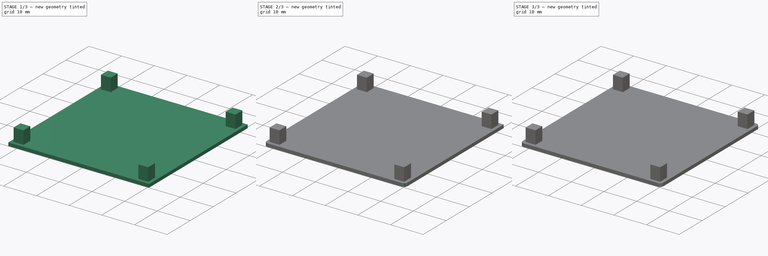
[diagram: build sequence overview — one tinted view per stage of 3, left to right]
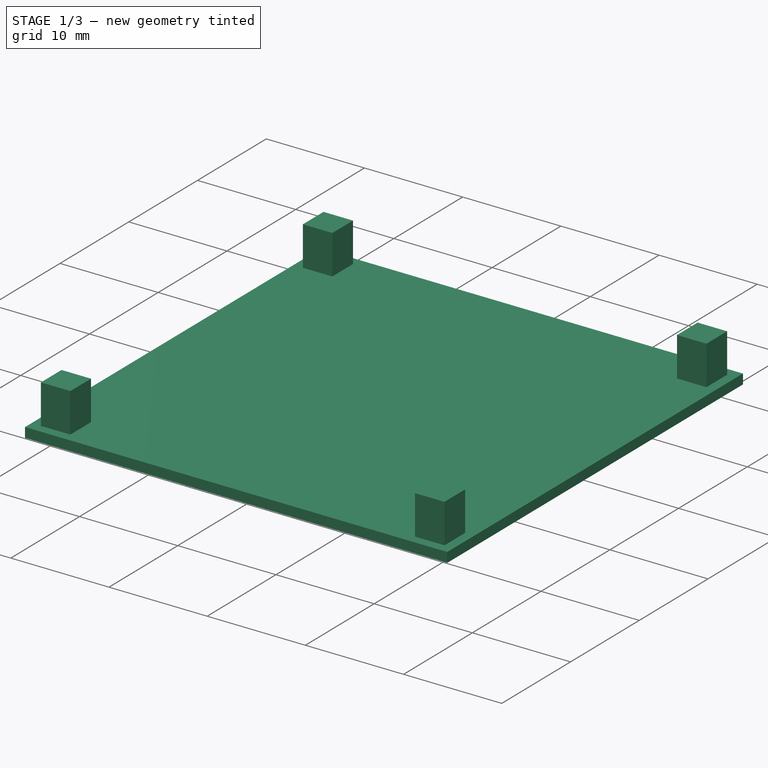
[diagram: stage 1 of 3 — iso view after this stage's code; geometry added in this stage tinted green]
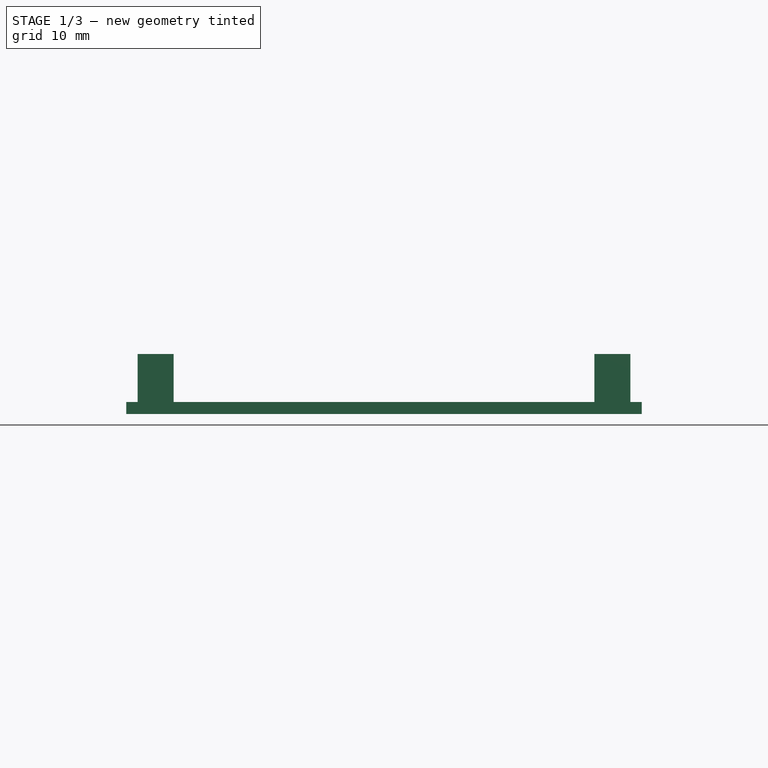
[diagram: stage 1 of 3 — front view after this stage's code; geometry added in this stage tinted green]
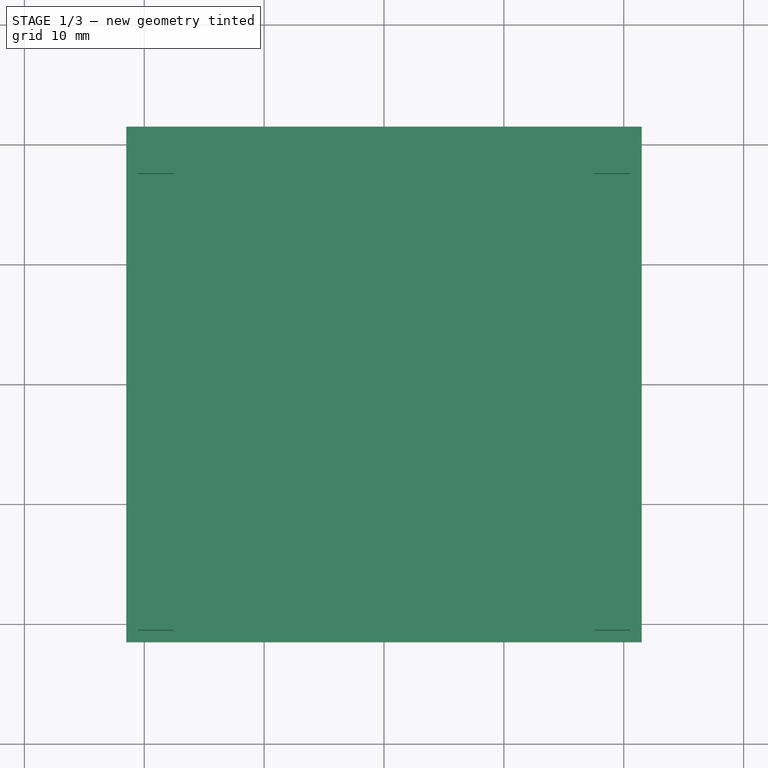
[diagram: stage 1 of 3 — top view after this stage's code; geometry added in this stage tinted green]
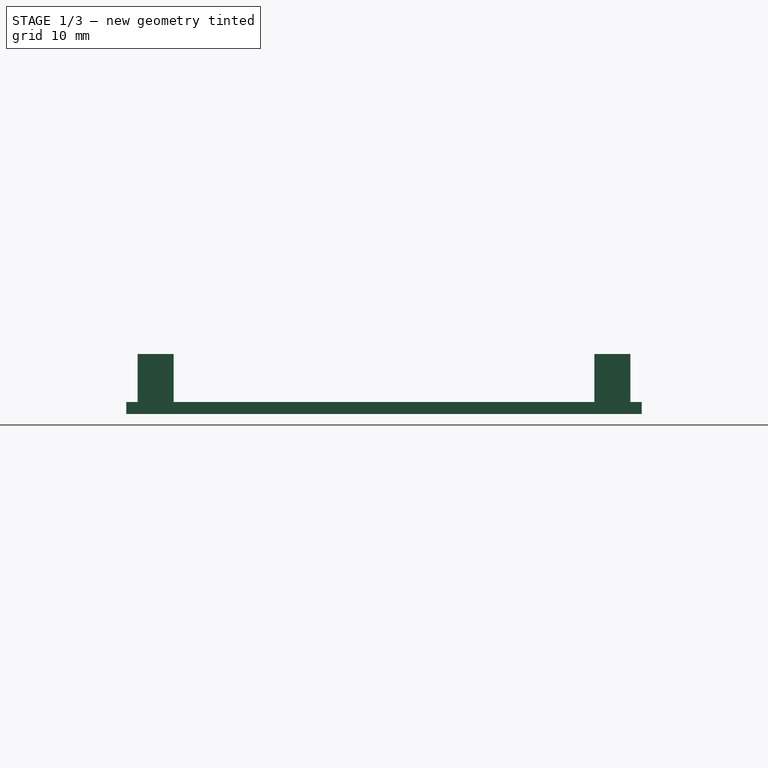
[diagram: stage 1 of 3 — right view after this stage's code; geometry added in this stage tinted green]
FCSTD DOCUMENT  (FreeCAD 0.18R16110 (Git))
Label: NanoPi Neo Top
License: All rights reserved
LicenseURL: http://en.wikipedia.org/wiki/All_rights_reserved
objects: PartDesign::Fillet×4, Sketcher::SketchObject×2, PartDesign::Pad×2, PartDesign::Body×1
note: 11 computed .brp shape members not serialized (recipe doc carries the construction recipe); baked Part::Feature solids carry a one-line shape summary decoded from their .brp

FEATURE [Sketcher::SketchObject] Sketch
  MapMode = 5
  Support = -> [XY_Plane]
  sketch-geometry (4):
    g0: LineSegment StartX=-21.5 StartY=21.5 StartZ=0 EndX=21.5 EndY=21.5 EndZ=0
    g1: LineSegment StartX=21.5 StartY=21.5 StartZ=0 EndX=21.5 EndY=-21.5 EndZ=0
    g2: LineSegment StartX=21.5 StartY=-21.5 StartZ=0 EndX=-21.5 EndY=-21.5 EndZ=0
    g3: LineSegment StartX=-21.5 StartY=-21.5 StartZ=0 EndX=-21.5 EndY=21.5 EndZ=0
  constraints (12):
    c: Coincident(g0,g1)
    c: Coincident(g1,g2)
    c: Coincident(g2,g3)
    c: Coincident(g3,g0)
    c: Horizontal(g0)
    c: Horizontal(g2)
    c: Vertical(g1)
    c: Vertical(g3)
    c: Distance(g0) = 43
    c: Distance(g3) = 43
    c: DistanceX(g2,g-1) = 21.5
    c: DistanceY(g-1,g0) = 21.5
FEATURE [PartDesign::Pad] Pad
  Length = 1
  Length2 = 100
  Profile = -> Sketch
  Type = 0
FEATURE [Sketcher::SketchObject] Sketch001
  ExternalGeometry = -> [Pad]
  MapMode = 5
  Placement = pos=(0,0,1) rot=(0,0,1;0rad)
  Support = -> [Pad]
  sketch-geometry (16):
    g0: LineSegment StartX=-20.55 StartY=20.55 StartZ=0 EndX=-17.55 EndY=20.55 EndZ=0
    g1: LineSegment StartX=-17.55 StartY=20.55 StartZ=0 EndX=-17.55 EndY=17.55 EndZ=0
    g2: LineSegment StartX=-17.55 StartY=17.55 StartZ=0 EndX=-20.55 EndY=17.55 EndZ=0
    g3: LineSegment StartX=-20.55 StartY=17.55 StartZ=0 EndX=-20.55 EndY=20.55 EndZ=0
    g4: LineSegment StartX=17.55 StartY=20.55 StartZ=0 EndX=20.55 EndY=20.55 EndZ=0
    g5: LineSegment StartX=20.55 StartY=20.55 StartZ=0 EndX=20.55 EndY=17.55 EndZ=0
    g6: LineSegment StartX=20.55 StartY=17.55 StartZ=0 EndX=17.55 EndY=17.55 EndZ=0
    g7: LineSegment StartX=17.55 StartY=17.55 StartZ=0 EndX=17.55 EndY=20.55 EndZ=0
    g8: LineSegment StartX=-20.55 StartY=-17.55 StartZ=0 EndX=-17.55 EndY=-17.55 EndZ=0
    g9: LineSegment StartX=-17.55 StartY=-17.55 StartZ=0 EndX=-17.55 EndY=-20.55 EndZ=0
    g10: LineSegment StartX=-17.55 StartY=-20.55 StartZ=0 EndX=-20.55 EndY=-20.55 EndZ=0
    g11: LineSegment StartX=-20.55 StartY=-20.55 StartZ=0 EndX=-20.55 EndY=-17.55 EndZ=0
    g12: LineSegment StartX=17.55 StartY=-17.55 StartZ=0 EndX=20.55 EndY=-17.55 EndZ=0
    g13: LineSegment StartX=20.55 StartY=-17.55 StartZ=0 EndX=20.55 EndY=-20.55 EndZ=0
    g14: LineSegment StartX=20.55 StartY=-20.55 StartZ=0 EndX=17.55 EndY=-20.55 EndZ=0
    g15: LineSegment StartX=17.55 StartY=-20.55 StartZ=0 EndX=17.55 EndY=-17.55 EndZ=0
  constraints (48):
    c: Coincident(g0,g1)
    c: Coincident(g1,g2)
    c: Coincident(g2,g3)
    c: Coincident(g3,g0)
    c: Horizontal(g0)
    c: Horizontal(g2)
    c: Vertical(g1)
    c: Vertical(g3)
    c: Distance(g0) = 3
    c: Distance(g3) = 3
    c: DistanceX(g-4,g0) = 0.95
    c: DistanceY(g0,g-4) = 0.95
    c: Coincident(g4,g5)
    c: Coincident(g5,g6)
    c: Coincident(g6,g7)
    c: Coincident(g7,g4)
    c: Horizontal(g4)
    c: Horizontal(g6)
    c: Vertical(g5)
    c: Vertical(g7)
    c: Distance(g4) = 3
    c: Distance(g7) = 3
    c: DistanceX(g4,g-5) = 0.95
    c: DistanceY(g4,g-5) = 0.95
    c: Coincident(g8,g9)
    c: Coincident(g9,g10)
    c: Coincident(g10,g11)
    c: Coincident(g11,g8)
    c: Horizontal(g8)
    c: Horizontal(g10)
    c: Vertical(g9)
    c: Vertical(g11)
    c: Distance(g8) = 3
    c: Distance(g11) = 3
    c: DistanceX(g-6,g10) = 0.95
    c: DistanceY(g-6,g10) = 0.95
    c: Coincident(g12,g13)
    c: Coincident(g13,g14)
    c: Coincident(g14,g15)
    c: Coincident(g15,g12)
    c: Horizontal(g12)
    c: Horizontal(g14)
    c: Vertical(g13)
    c: Vertical(g15)
    c: Distance(g12) = 3
    c: Distance(g15) = 3
    c: DistanceX(g13,g-6) = 0.95
    c: DistanceY(g-6,g13) = 0.95
FEATURE [PartDesign::Pad] Pad001
  BaseFeature = -> Pad
  Length = 4
  Length2 = 100
  Profile = -> Sketch001
  Type = 0
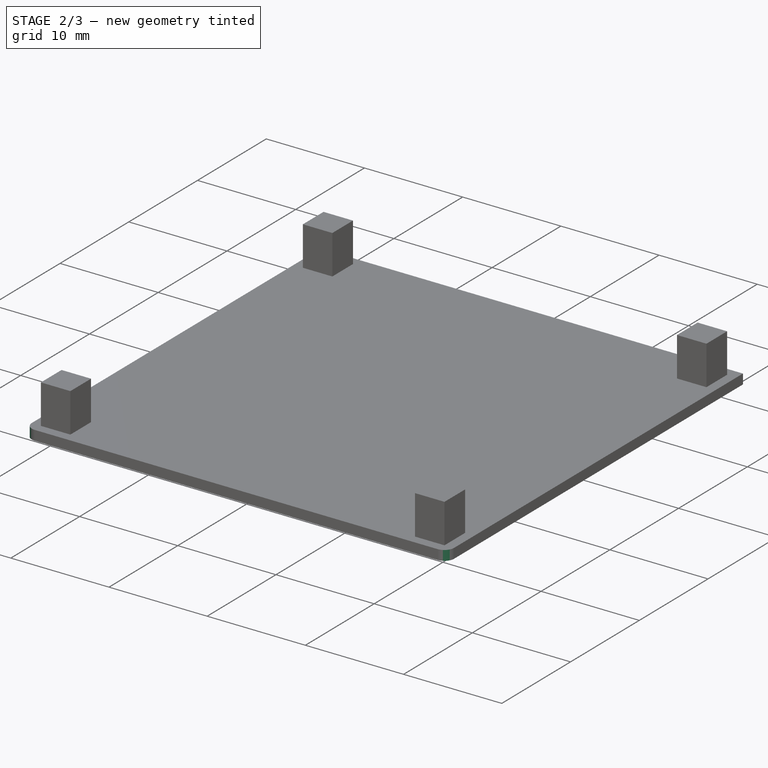
[diagram: stage 2 of 3 — iso view after this stage's code; geometry added in this stage tinted green]
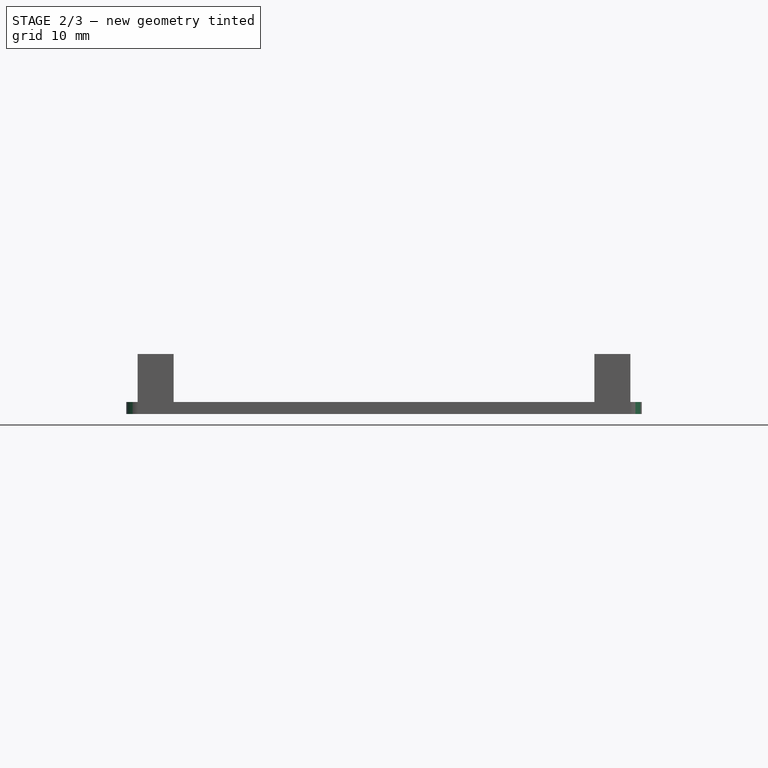
[diagram: stage 2 of 3 — front view after this stage's code; geometry added in this stage tinted green]
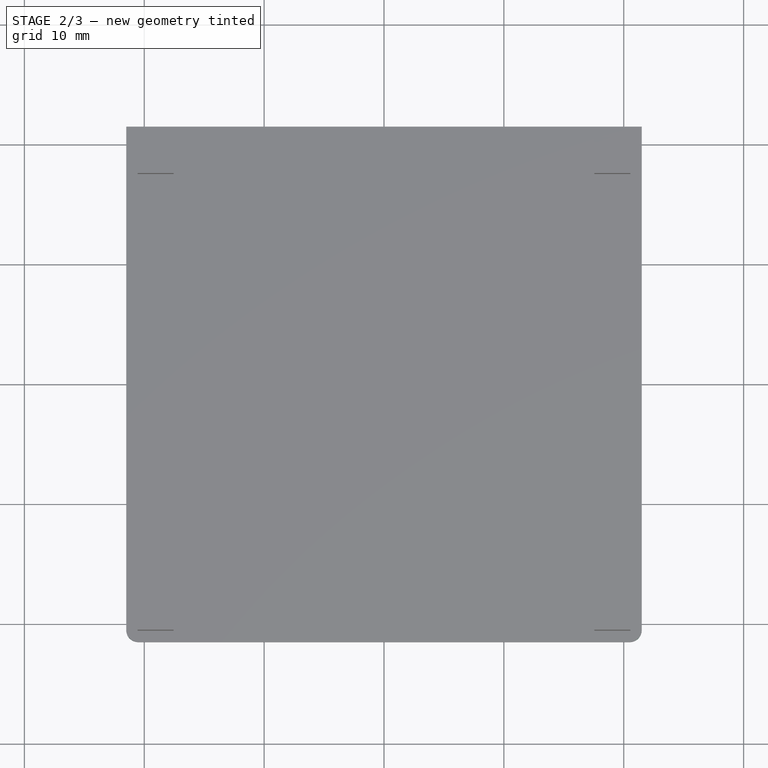
[diagram: stage 2 of 3 — top view after this stage's code; geometry added in this stage tinted green]
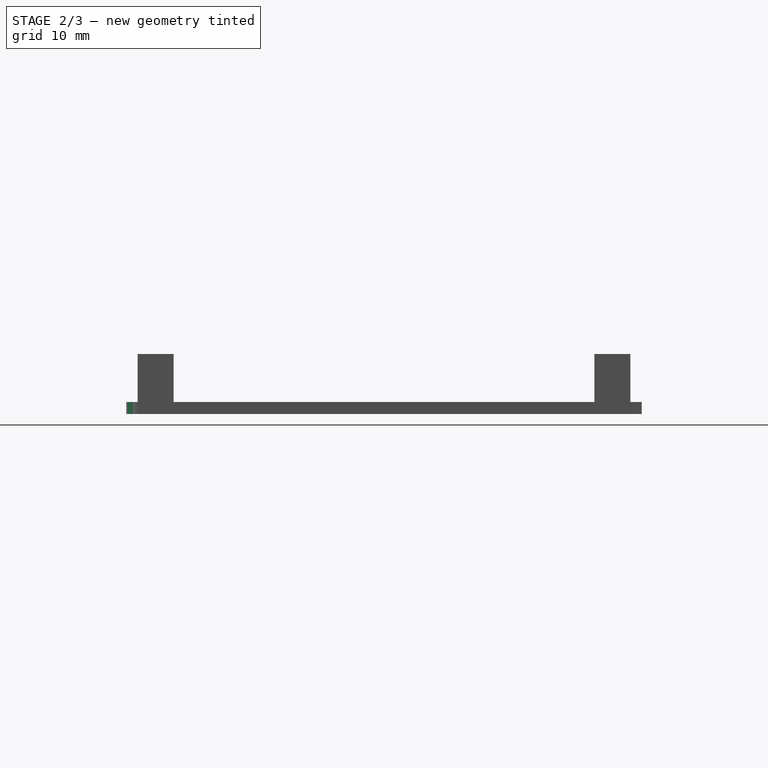
[diagram: stage 2 of 3 — right view after this stage's code; geometry added in this stage tinted green]
FEATURE [PartDesign::Fillet] Fillet
  Base = -> Pad001 [Edge5]
  BaseFeature = -> Pad001
  Radius = 1
FEATURE [PartDesign::Fillet] Fillet001
  Base = -> Fillet [Edge31]
  BaseFeature = -> Fillet
  Radius = 1
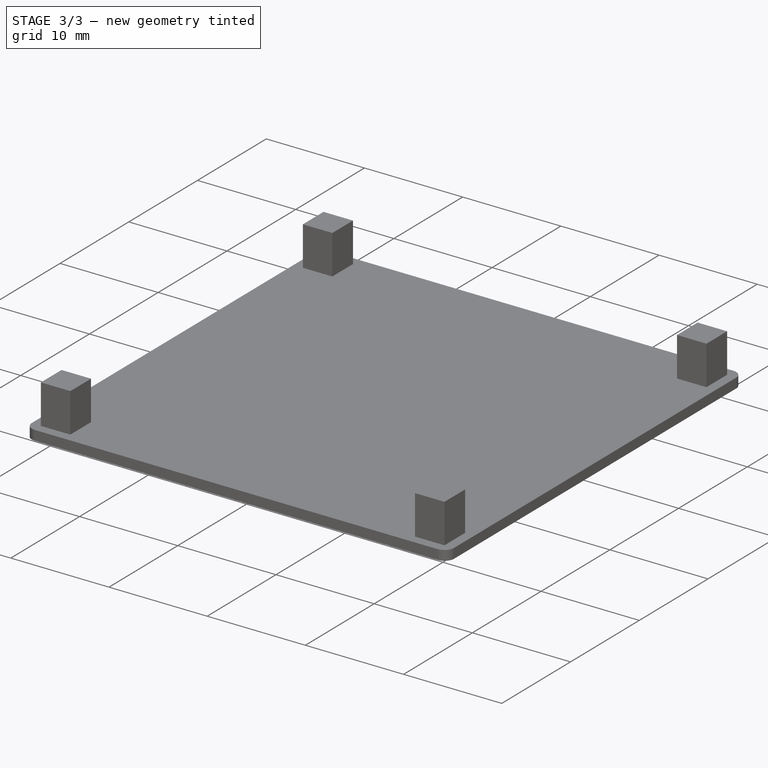
[diagram: stage 3 of 3 — iso view after this stage's code; geometry added in this stage tinted green]
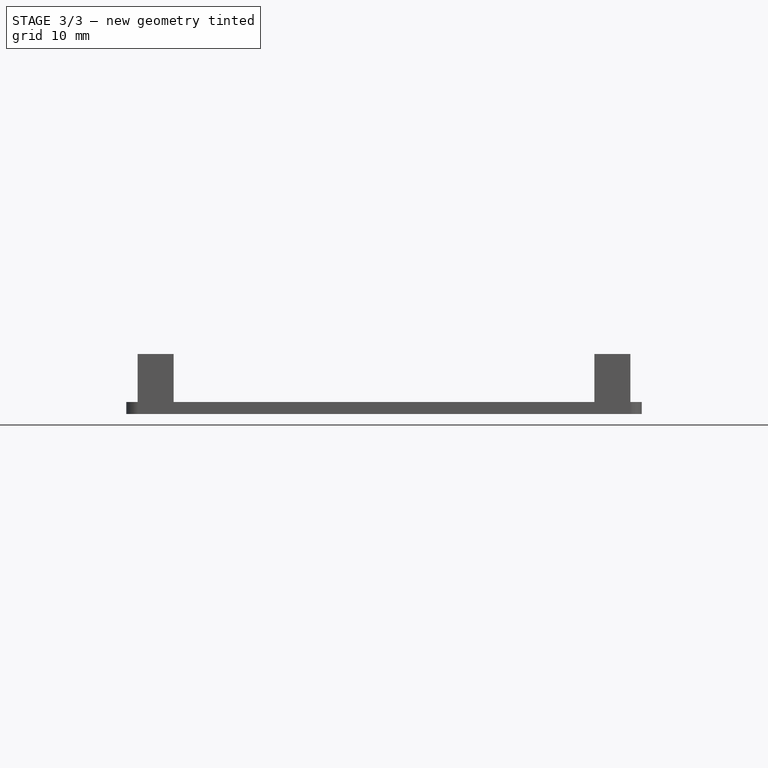
[diagram: stage 3 of 3 — front view after this stage's code; geometry added in this stage tinted green]
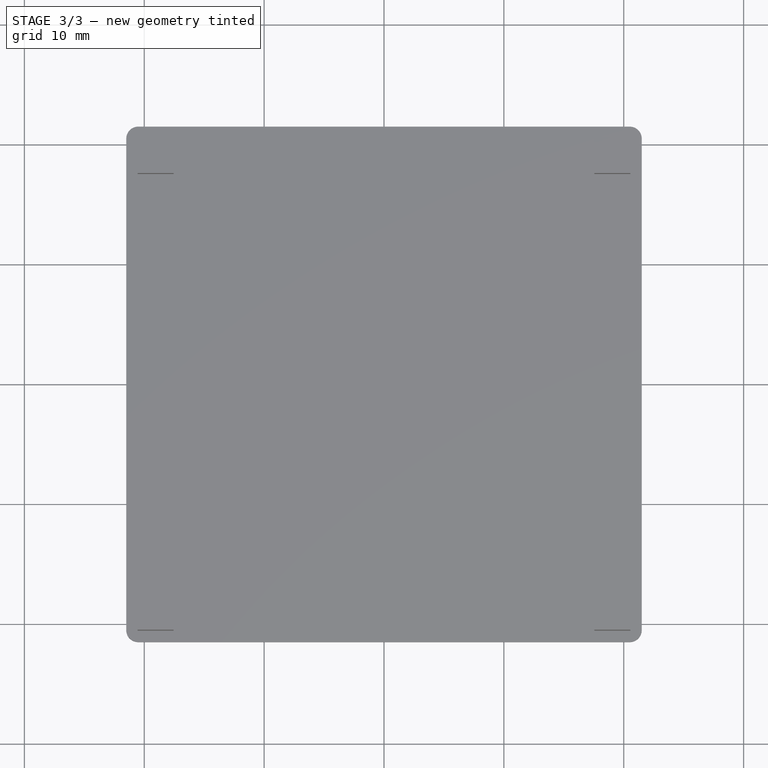
[diagram: stage 3 of 3 — top view after this stage's code; geometry added in this stage tinted green]
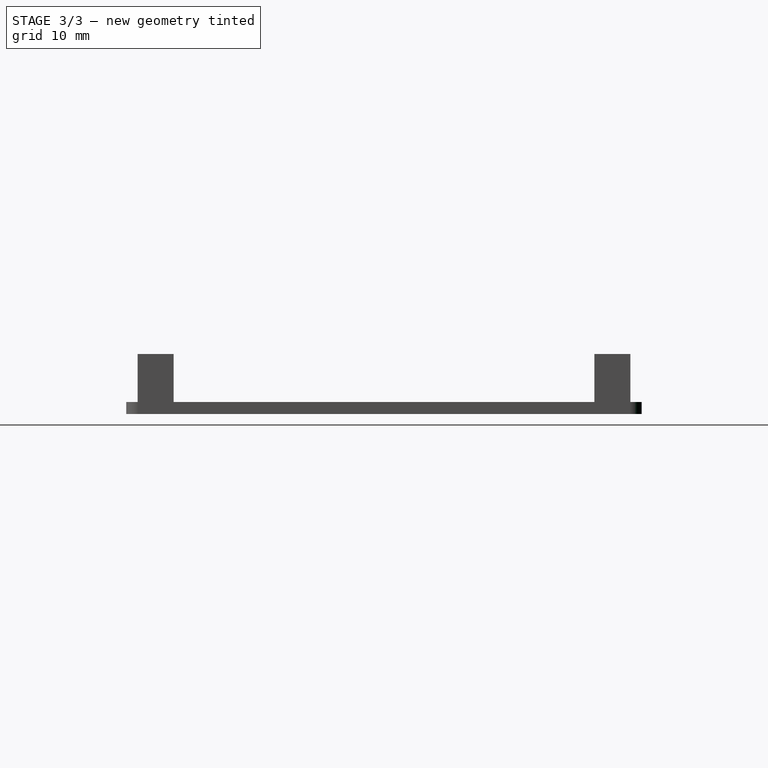
[diagram: stage 3 of 3 — right view after this stage's code; geometry added in this stage tinted green]
FEATURE [PartDesign::Fillet] Fillet002
  Base = -> Fillet001 [Edge16]
  BaseFeature = -> Fillet001
  Radius = 1
FEATURE [PartDesign::Fillet] Fillet003
  Base = -> Fillet002 [Edge15]
  BaseFeature = -> Fillet002
  Radius = 1
FEATURE [PartDesign::Body] Body
  Group = -> [Sketch,Pad,Sketch001,Pad001,Fillet,Fillet001,Fillet002,Fillet003]
  Origin = -> Origin
  Tip = -> Fillet003
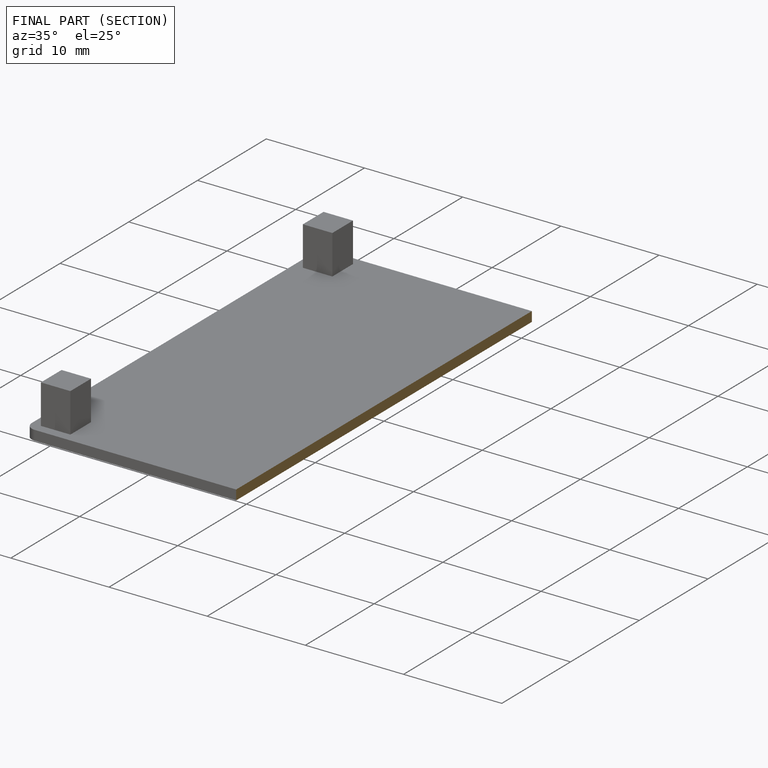
[diagram: finished part — half-section view (interior)]
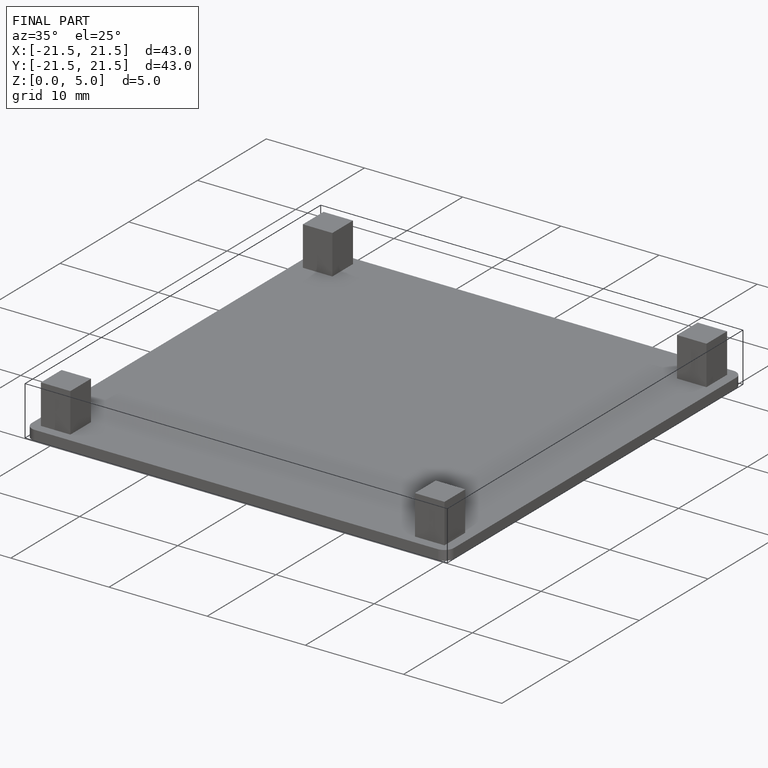
[diagram: finished part — iso view with bounding-box wireframe]
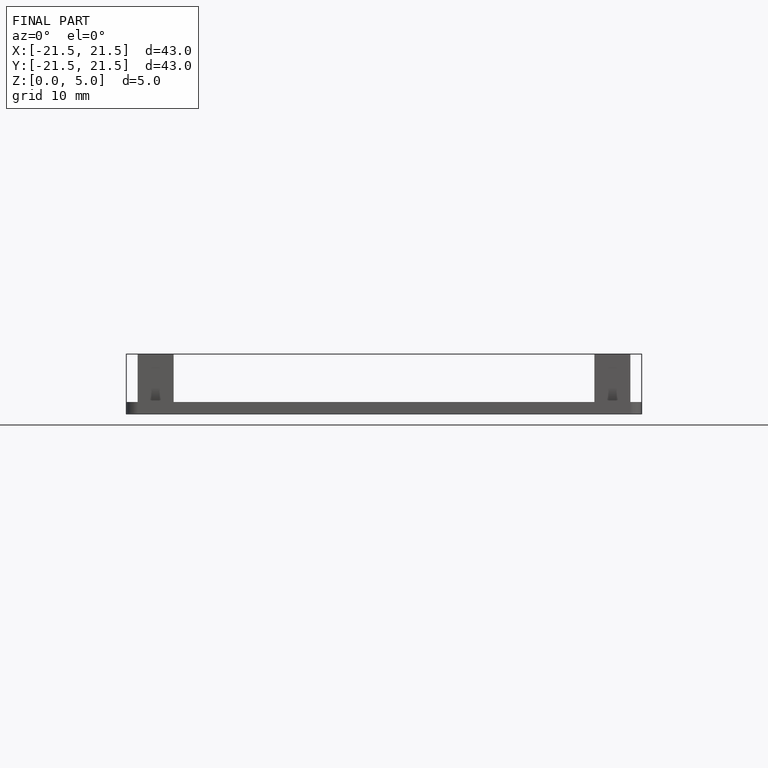
[diagram: finished part — front view with bounding-box wireframe]
